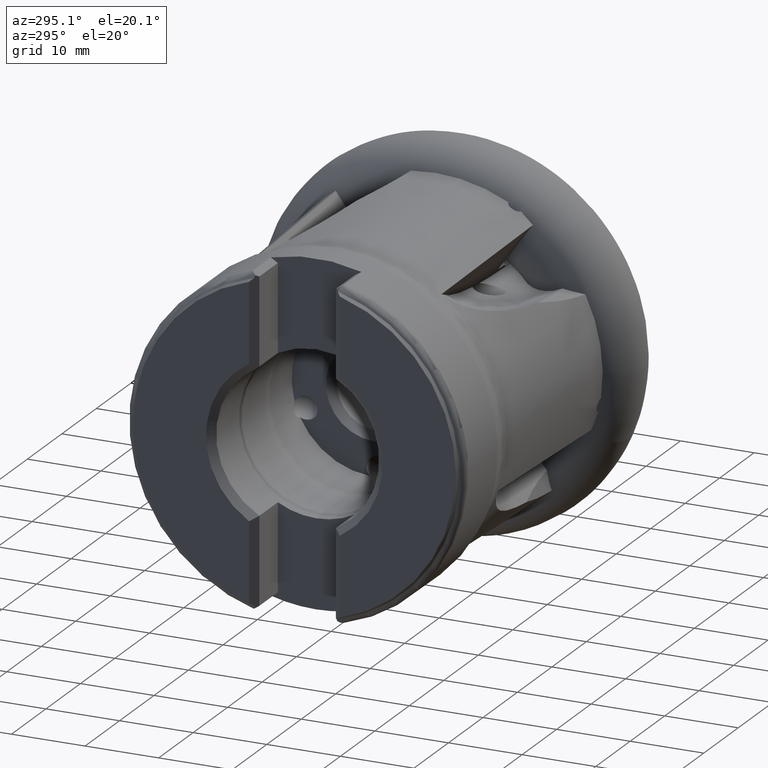
[diagram: clean part render]
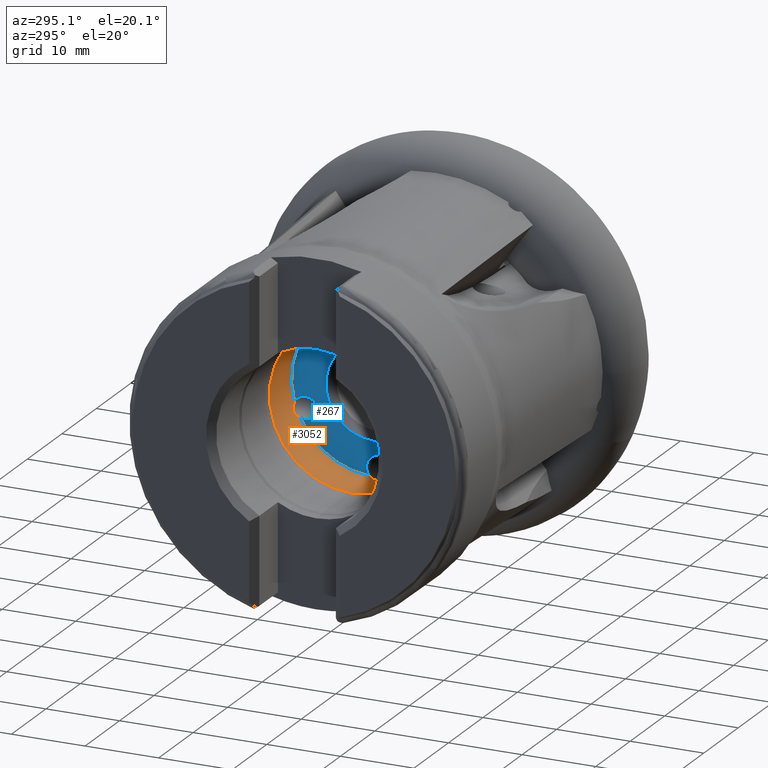
[diagram: same view with the hole feature highlighted: cylindrical wall and planar end face, labeled with their STEP entity ids]
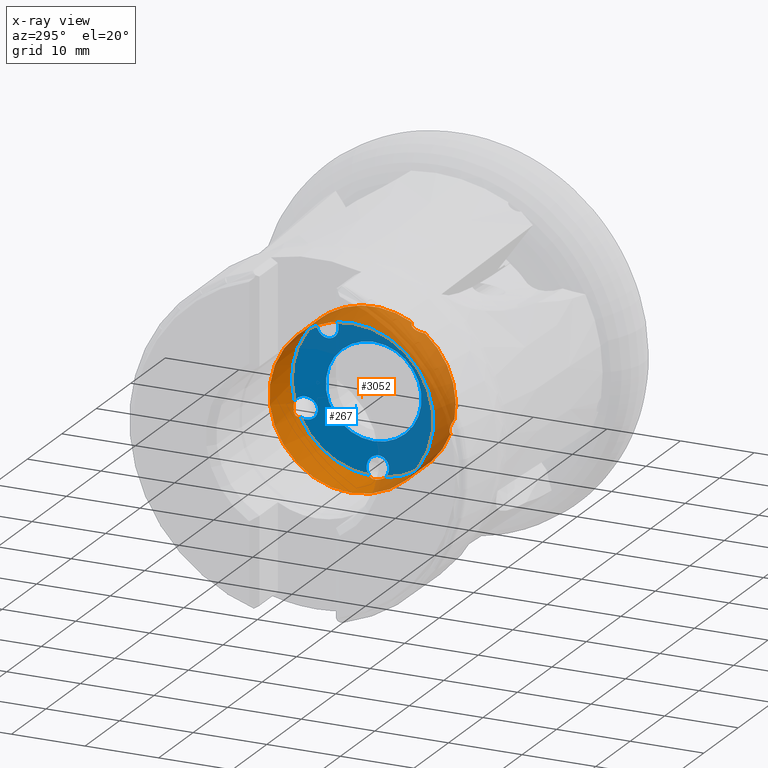
[diagram: x-ray of the same camera — body ghosted, the hole faces saturated]
A machine part, auxiliary view. The highlighted faces form one hole feature of diameter 22.3 mm: the cylindrical wall (entity #3052, orange) and its adjacent planar end face (entity #267, blue) — they share a circular edge in the B-rep.
The next image is the same camera in x-ray (body ghosted, the hole faces saturated) — the bore reads through the body.
Wall:
#8 = CARTESIAN_POINT ( 'NONE',  ( -27.76175187989196000, -5.239810333345375600, 9.842152369095432000 ) ) ;
#41 = CARTESIAN_POINT ( 'NONE',  ( -28.50151190111668600, 10.49074077464704400, -3.778720892872386100 ) ) ;
#59 = CARTESIAN_POINT ( 'NONE',  ( -28.29960827260967400, 10.59433333563337800, -3.477230530879941800 ) ) ;
#64 = CARTESIAN_POINT ( 'NONE',  ( -28.37466872460203900, -0.1309024088460021000, -11.14976025865080400 ) ) ;
#77 = CARTESIAN_POINT ( 'NONE',  ( -28.48440620764359100, -1.073869478455315800, -11.09878260729667900 ) ) ;
#81 = CARTESIAN_POINT ( 'NONE',  ( -28.57761957619680300, -0.8408868129407314200, -11.11886146998025800 ) ) ;
#141 = CARTESIAN_POINT ( 'NONE',  ( -27.64100000000014000, 10.00971959575362100, -4.912027444384439600 ) ) ;
#154 = CARTESIAN_POINT ( 'NONE',  ( -28.21370518614570600, 10.11406884447506400, -4.694131514302225300 ) ) ;
#165 = ORIENTED_EDGE ( 'NONE', *, *, #716, .T. ) ;
#193 = CARTESIAN_POINT ( 'NONE',  ( -27.84438998953940100, 6.227662339116482000, 9.249052834972788500 ) ) ;
#219 = B_SPLINE_CURVE_WITH_KNOTS ( 'NONE', 3,
 ( #3030, #4490, #2449, #488, #2796, #2884, #77, #81, #4765, #2779, #466, #64, #2758, #3398, #327, #635 ),
 .UNSPECIFIED., .F., .F.,
 ( 4, 2, 2, 2, 2, 2, 2, 4 ),
 ( 0.0000000000000000000, 0.0003733305458989563100, 0.0007466610917979126100, 0.001119991637696868700, 0.001493322183595824800, 0.001866652729494781300, 0.002239983275393737400, 0.002986644367191643100 ),
 .UNSPECIFIED. ) ;
#281 = CIRCLE ( 'NONE', #2690, 11.14999999999999700 ) ;
#313 = CARTESIAN_POINT ( 'NONE',  ( -27.64099999999993100, -10.98525055255765900, -1.909651878623837000 ) ) ;
#327 = CARTESIAN_POINT ( 'NONE',  ( -27.84981983259566700, 0.4012883259256733700, -11.14363269402992700 ) ) ;
#363 = CARTESIAN_POINT ( 'NONE',  ( -27.64099999999999100, -10.42522877188839400, -3.954377960411772800 ) ) ;
#369 = B_SPLINE_CURVE_WITH_KNOTS ( 'NONE', 3,
 ( #141, #2590, #721, #1578, #154, #1069, #2503, #1900, #1218, #2399, #2483, #3195, #41, #2083, #59, #3231, #3227, #899 ),
 .UNSPECIFIED., .F., .F.,
 ( 4, 2, 2, 2, 2, 2, 2, 2, 4 ),
 ( 0.01533476676371836900, 0.01570877489821198600, 0.01608278303270560200, 0.01626978709995240800, 0.01645679116719921100, 0.01683079930169282000, 0.01720480743618643000, 0.01757881557068003600, 0.01832683183966726100 ),
 .UNSPECIFIED. ) ;
#374 = CARTESIAN_POINT ( 'NONE',  ( -27.74424415668752500, -10.44945067765695000, -3.890519899433184700 ) ) ;
#390 = CARTESIAN_POINT ( 'NONE',  ( -27.84439165986338000, -10.47474244370597600, -3.822109793065052900 ) ) ;
#434 = CARTESIAN_POINT ( 'NONE',  ( -28.03650383006808200, -10.52789701607413700, -3.673164432904745700 ) ) ;
#448 = B_SPLINE_CURVE_WITH_KNOTS ( 'NONE', 3,
 ( #4319, #8, #4182, #4220, #4168, #4137, #4152, #3980, #3944, #3957, #3934, #3911, #3923, #3902, #3857, #3889 ),
 .UNSPECIFIED., .F., .F.,
 ( 4, 2, 2, 2, 2, 2, 2, 4 ),
 ( 0.005253013144898744900, 0.005624366798112977200, 0.005995720451327210400, 0.006367074104541442700, 0.006738427757755675900, 0.007109781410969908200, 0.007481135064184140500, 0.008223842370612599900 ),
 .UNSPECIFIED. ) ;
#462 = CARTESIAN_POINT ( 'NONE',  ( -28.12898103722292100, -10.55593071622005900, -3.592115680404644400 ) ) ;
#466 = CARTESIAN_POINT ( 'NONE',  ( -28.49967764380002000, -0.3480090985025286500, -11.14509663185519100 ) ) ;
#481 = CARTESIAN_POINT ( 'NONE',  ( -28.29674349209958700, -10.61378190402091400, -3.417396968589571300 ) ) ;
#488 = CARTESIAN_POINT ( 'NONE',  ( -28.10603189946736800, -1.402094405171310000, -11.06161683079874400 ) ) ;
#503 = CARTESIAN_POINT ( 'NONE',  ( -28.37279976103210200, -10.64368386327685900, -3.323611888745839200 ) ) ;
#516 = AXIS2_PLACEMENT_3D ( 'NONE', #2201, #2216, #2233 ) ;
#529 = CARTESIAN_POINT ( 'NONE',  ( -27.64099999999999100, 6.109862199583383300, 9.326954696046401600 ) ) ;
#536 = CARTESIAN_POINT ( 'NONE',  ( -28.49895342690748000, -10.70667955201110800, -3.114709479059036800 ) ) ;
#555 = CARTESIAN_POINT ( 'NONE',  ( -28.54713109719822500, -10.73885307242207400, -3.002495864615267500 ) ) ;
#609 = CARTESIAN_POINT ( 'NONE',  ( -28.10792409226307600, -10.95331359034935700, -2.085714191509269600 ) ) ;
#625 = VERTEX_POINT ( 'NONE', #1984 ) ;
#635 = CARTESIAN_POINT ( 'NONE',  ( -27.64099999999999100, 0.5392640663821600700, -11.13695174932121600 ) ) ;
#642 = AXIS2_PLACEMENT_3D ( 'NONE', #4502, #4507, #4519 ) ;
#689 = DIRECTION ( 'NONE',  ( 0.0000000000000000000, 0.0000000000000000000, -1.000000000000000000 ) ) ;
#716 = EDGE_CURVE ( 'NONE', #2002, #773, #281, .T. ) ;
#721 = CARTESIAN_POINT ( 'NONE',  ( -27.87817138418771300, 10.04162824195284600, -4.846745495625027500 ) ) ;
#773 = VERTEX_POINT ( 'NONE', #2174 ) ;
#790 = CIRCLE ( 'NONE', #642, 11.14999999999999700 ) ;
#899 = CARTESIAN_POINT ( 'NONE',  ( -27.64099999999999100, 10.75851229382456600, -2.928636751737163200 ) ) ;
#910 = CARTESIAN_POINT ( 'NONE',  ( -27.64099999999999100, 6.109862199583383300, 9.326954696046401600 ) ) ;
#915 = VERTEX_POINT ( 'NONE', #3529 ) ;
#944 = CARTESIAN_POINT ( 'NONE',  ( -27.76207187011228000, -10.97961870044523500, -1.942049043375919900 ) ) ;
#1069 = CARTESIAN_POINT ( 'NONE',  ( -28.35616673221830200, 10.16515963935414200, -4.581890365616802200 ) ) ;
#1114 = CARTESIAN_POINT ( 'NONE',  ( -27.64099999999993100, -10.98525055255765900, -1.909651878623837000 ) ) ;
#1183 = B_SPLINE_CURVE_WITH_KNOTS ( 'NONE', 3,
 ( #1194, #1211, #3449, #4560, #4868, #2549, #4602, #3657, #4525, #1539, #4691, #2788, #4933, #2689, #2916, #193, #5028, #529 ),
 .UNSPECIFIED., .F., .F.,
 ( 4, 2, 2, 2, 2, 2, 2, 2, 4 ),
 ( 0.006154594416985495800, 0.006525241321048131900, 0.006895888225110767000, 0.007266535129173402200, 0.007637182033236038200, 0.008007828937298674300, 0.008378475841361310300, 0.008749122745423944600, 0.009119769649486580600 ),
 .UNSPECIFIED. ) ;
#1194 = CARTESIAN_POINT ( 'NONE',  ( -27.64099999999973900, 7.764789173218301400, 8.001909090677784800 ) ) ;
#1211 = CARTESIAN_POINT ( 'NONE',  ( -27.76219559675475800, 7.741166217194797900, 8.024832029578000500 ) ) ;
#1218 = CARTESIAN_POINT ( 'NONE',  ( -28.50625553733739200, 10.24542757479512600, -4.399665409350209400 ) ) ;
#1280 = CARTESIAN_POINT ( 'NONE',  ( -27.64099999999999100, 10.75851229382456600, -2.928636751737163200 ) ) ;
#1283 = CIRCLE ( 'NONE', #516, 11.14999999999999700 ) ;
#1319 = EDGE_CURVE ( 'NONE', #1490, #4888, #1703, .T. ) ;
#1376 = CARTESIAN_POINT ( 'NONE',  ( -27.88033189125990000, -10.97255674015709600, -1.981989122378886600 ) ) ;
#1424 = AXIS2_PLACEMENT_3D ( 'NONE', #1548, #1509, #1530 ) ;
#1433 = CARTESIAN_POINT ( 'NONE',  ( -28.48557062982430600, -10.88694836224404500, -2.410472066688763800 ) ) ;
#1460 = ORIENTED_EDGE ( 'NONE', *, *, #3063, .T. ) ;
#1490 = VERTEX_POINT ( 'NONE', #1936 ) ;
#1509 = DIRECTION ( 'NONE',  ( 1.000000000000000000, -0.0000000000000000000, -0.0000000000000000000 ) ) ;
#1530 = DIRECTION ( 'NONE',  ( 0.0000000000000000000, 0.0000000000000000000, -1.000000000000000000 ) ) ;
#1539 = CARTESIAN_POINT ( 'NONE',  ( -28.54714890529600200, 6.923156875071445200, 8.741157310479806600 ) ) ;
#1548 = CARTESIAN_POINT ( 'NONE',  ( -34.09004181246353200, 0.0000000000000000000, 0.0000000000000000000 ) ) ;
#1578 = CARTESIAN_POINT ( 'NONE',  ( -28.10495880415984300, 10.08668901981584500, -4.752256755108351000 ) ) ;
#1640 = CARTESIAN_POINT ( 'NONE',  ( 0.0000000000000000000, 0.0000000000000000000, 0.0000000000000000000 ) ) ;
#1660 = EDGE_CURVE ( 'NONE', #2291, #2002, #1183, .T. ) ;
#1664 = B_SPLINE_CURVE_WITH_KNOTS ( 'NONE', 3,
 ( #313, #944, #1376, #609, #3837, #2357, #1433, #4522, #5099, #555, #536, #503, #481, #462, #434, #390, #374, #363 ),
 .UNSPECIFIED., .F., .F.,
 ( 4, 2, 2, 2, 2, 2, 2, 2, 4 ),
 ( 0.007845392675330556700, 0.008224136724038363900, 0.008602880772746169400, 0.008981624821453976600, 0.009360368870161783800, 0.009739112918869590900, 0.01011785696757739800, 0.01049660101628520400, 0.01087534506499301100 ),
 .UNSPECIFIED. ) ;
#1700 = FACE_OUTER_BOUND ( 'NONE', #3808, .T. ) ;
#1703 = CIRCLE ( 'NONE', #4991, 11.14999999999999700 ) ;
#1839 = EDGE_CURVE ( 'NONE', #2098, #4574, #790, .T. ) ;
#1900 = CARTESIAN_POINT ( 'NONE',  ( -28.47412094118071100, 10.22348394666505400, -4.450317970819905400 ) ) ;
#1936 = CARTESIAN_POINT ( 'NONE',  ( -27.64099999999999100, 0.5392640663821600700, -11.13695174932121600 ) ) ;
#1969 = ORIENTED_EDGE ( 'NONE', *, *, #1319, .T. ) ;
#1984 = CARTESIAN_POINT ( 'NONE',  ( -27.64099999999999100, -10.42522877188839400, -3.954377960411772800 ) ) ;
#2002 = VERTEX_POINT ( 'NONE', #910 ) ;
#2013 = CARTESIAN_POINT ( 'NONE',  ( -27.64099999999999100, 0.0000000000000000000, 0.0000000000000000000 ) ) ;
#2025 = CYLINDRICAL_SURFACE ( 'NONE', #4562, 11.14999999999999700 ) ;
#2083 = CARTESIAN_POINT ( 'NONE',  ( -28.37692465044574400, 10.56258692094268700, -3.572972309520862800 ) ) ;
#2098 = VERTEX_POINT ( 'NONE', #4903 ) ;
#2167 = ORIENTED_EDGE ( 'NONE', *, *, #2621, .T. ) ;
#2172 = CARTESIAN_POINT ( 'NONE',  ( -27.64099999999973900, 7.764789173218301400, 8.001909090677784800 ) ) ;
#2174 = CARTESIAN_POINT ( 'NONE',  ( -27.64099999999963900, -5.210815971227481700, 9.857479237310139200 ) ) ;
#2201 = CARTESIAN_POINT ( 'NONE',  ( -27.64099999999999100, 0.0000000000000000000, 0.0000000000000000000 ) ) ;
#2202 = CARTESIAN_POINT ( 'NONE',  ( -27.64100000000014000, 10.00971959575362100, -4.912027444384439600 ) ) ;
#2216 = DIRECTION ( 'NONE',  ( 1.000000000000000000, -0.0000000000000000000, -0.0000000000000000000 ) ) ;
#2233 = DIRECTION ( 'NONE',  ( 0.0000000000000000000, 0.0000000000000000000, -1.000000000000000000 ) ) ;
#2291 = VERTEX_POINT ( 'NONE', #2172 ) ;
#2357 = CARTESIAN_POINT ( 'NONE',  ( -28.40534731315663200, -10.90834382812467100, -2.310262262390752500 ) ) ;
#2399 = CARTESIAN_POINT ( 'NONE',  ( -28.57647870329350700, 10.31303214092542800, -4.239957037360077200 ) ) ;
#2449 = CARTESIAN_POINT ( 'NONE',  ( -27.87993420573407700, -1.505807776758753000, -11.04797622064220300 ) ) ;
#2483 = CARTESIAN_POINT ( 'NONE',  ( -28.58827441660184500, 10.36146603525657300, -4.120438118413510200 ) ) ;
#2503 = CARTESIAN_POINT ( 'NONE',  ( -28.39920735390253600, 10.18353646926969300, -4.540984367752749100 ) ) ;
#2549 = CARTESIAN_POINT ( 'NONE',  ( -28.40515234089129100, 7.467233250044054100, 8.280681338351799400 ) ) ;
#2590 = CARTESIAN_POINT ( 'NONE',  ( -27.76081483145849700, 10.02405550202009500, -4.882813763576835200 ) ) ;
#2608 = CARTESIAN_POINT ( 'NONE',  ( -27.64099999999999100, -1.578442245185529600, -11.03770900497986300 ) ) ;
#2621 = EDGE_CURVE ( 'NONE', #4574, #625, #1664, .T. ) ;
#2676 = VERTEX_POINT ( 'NONE', #1280 ) ;
#2689 = CARTESIAN_POINT ( 'NONE',  ( -28.12901826441644800, 6.428566643880295800, 9.110680252013004600 ) ) ;
#2690 = AXIS2_PLACEMENT_3D ( 'NONE', #2013, #4839, #4413 ) ;
#2702 = ORIENTED_EDGE ( 'NONE', *, *, #1839, .T. ) ;
#2758 = CARTESIAN_POINT ( 'NONE',  ( -28.29806083007545700, -0.03135636381355134900, -11.15033425612393500 ) ) ;
#2770 = DIRECTION ( 'NONE',  ( 0.0000000000000000000, 0.0000000000000000000, -1.000000000000000000 ) ) ;
#2779 = CARTESIAN_POINT ( 'NONE',  ( -28.54784347582641100, -0.4654022522181431900, -11.14097030028453600 ) ) ;
#2788 = CARTESIAN_POINT ( 'NONE',  ( -28.37281164383543700, 6.657358303248833500, 8.945054109531488600 ) ) ;
#2796 = CARTESIAN_POINT ( 'NONE',  ( -28.21549657832513700, -1.337689996288807800, -11.06977017365814200 ) ) ;
#2807 = CARTESIAN_POINT ( 'NONE',  ( -27.64099999999999100, 0.0000000000000000000, 0.0000000000000000000 ) ) ;
#2812 = DIRECTION ( 'NONE',  ( 1.000000000000000000, -0.0000000000000000000, -0.0000000000000000000 ) ) ;
#2884 = CARTESIAN_POINT ( 'NONE',  ( -28.40436084200300800, -1.174707208072743600, -11.08825005125174800 ) ) ;
#2916 = CARTESIAN_POINT ( 'NONE',  ( -28.03655953891823700, 6.358254981223423000, 9.159768018236896100 ) ) ;
#2998 = EDGE_CURVE ( 'NONE', #4888, #2676, #369, .T. ) ;
#3030 = CARTESIAN_POINT ( 'NONE',  ( -27.64099999999999100, -1.578442245185529600, -11.03770900497986300 ) ) ;
#3052 = ADVANCED_FACE ( 'NONE', ( #1700, #3323 ), #2025, .F. ) ;
#3063 = EDGE_CURVE ( 'NONE', #4009, #1490, #219, .T. ) ;
#3195 = CARTESIAN_POINT ( 'NONE',  ( -28.54889461945562700, 10.45085576941008800, -3.888136105441592600 ) ) ;
#3227 = CARTESIAN_POINT ( 'NONE',  ( -27.84923864647413400, 10.72233038354402600, -3.061553039950927000 ) ) ;
#3231 = CARTESIAN_POINT ( 'NONE',  ( -28.04802869907345600, 10.67855971889825100, -3.213251670116927800 ) ) ;
#3283 = ORIENTED_EDGE ( 'NONE', *, *, #2998, .T. ) ;
#3323 = FACE_OUTER_BOUND ( 'NONE', #4879, .T. ) ;
#3398 = CARTESIAN_POINT ( 'NONE',  ( -28.04744766350547300, 0.2442030094096111200, -11.14883912654432800 ) ) ;
#3448 = ORIENTED_EDGE ( 'NONE', *, *, #4511, .F. ) ;
#3449 = CARTESIAN_POINT ( 'NONE',  ( -27.88052136099934900, 7.711948519667706700, 8.053020137906719000 ) ) ;
#3529 = CARTESIAN_POINT ( 'NONE',  ( -34.09004181246353200, 0.0000000000000000000, -11.14999999999999700 ) ) ;
#3657 = CARTESIAN_POINT ( 'NONE',  ( -28.57767084675306500, 7.215097955701497600, 8.501671200604121700 ) ) ;
#3683 = EDGE_CURVE ( 'NONE', #625, #4009, #1283, .T. ) ;
#3698 = ORIENTED_EDGE ( 'NONE', *, *, #1660, .T. ) ;
#3808 = EDGE_LOOP ( 'NONE', ( #3448 ) ) ;
#3837 = CARTESIAN_POINT ( 'NONE',  ( -28.21619357089211600, -10.94126648811469800, -2.148944957338536600 ) ) ;
#3857 = CARTESIAN_POINT ( 'NONE',  ( -27.84748640889747800, -6.875915481142405900, 8.778550231256632600 ) ) ;
#3889 = CARTESIAN_POINT ( 'NONE',  ( -27.64099999999999100, -6.982409787904478200, 8.693011765422596700 ) ) ;
#3902 = CARTESIAN_POINT ( 'NONE',  ( -28.04557583490066400, -6.752046500370956200, 8.875031156286320700 ) ) ;
#3911 = CARTESIAN_POINT ( 'NONE',  ( -28.37342721544328600, -6.449254464011104900, 9.096233633199954500 ) ) ;
#3923 = CARTESIAN_POINT ( 'NONE',  ( -28.29689501489837900, -6.529815098445007000, 9.038388532928626900 ) ) ;
#3934 = CARTESIAN_POINT ( 'NONE',  ( -28.49913170177226000, -6.270432760104976700, 9.220413355827798100 ) ) ;
#3944 = CARTESIAN_POINT ( 'NONE',  ( -28.58819576354195400, -5.965138669479076200, 9.420987349235693000 ) ) ;
#3957 = CARTESIAN_POINT ( 'NONE',  ( -28.54740435054954500, -6.173220617934076100, 9.285969479967466400 ) ) ;
#3978 = AXIS2_PLACEMENT_3D ( 'NONE', #4514, #4442, #4462 ) ;
#3980 = CARTESIAN_POINT ( 'NONE',  ( -28.57765116610818300, -5.855696916664294700, 9.489304956249426900 ) ) ;
#4009 = VERTEX_POINT ( 'NONE', #2608 ) ;
#4067 = ORIENTED_EDGE ( 'NONE', *, *, #4265, .T. ) ;
#4137 = CARTESIAN_POINT ( 'NONE',  ( -28.40496136457068800, -5.567671163058697000, 9.660761449811227300 ) ) ;
#4152 = CARTESIAN_POINT ( 'NONE',  ( -28.48508961667790400, -5.655975772158500400, 9.609684333904406000 ) ) ;
#4168 = CARTESIAN_POINT ( 'NONE',  ( -28.21560424451005000, -5.424449708233595400, 9.741900191079693600 ) ) ;
#4182 = CARTESIAN_POINT ( 'NONE',  ( -27.87958510888061500, -5.275482721037604100, 9.823162723703916300 ) ) ;
#4196 = CIRCLE ( 'NONE', #3978, 11.14999999999999700 ) ;
#4220 = CARTESIAN_POINT ( 'NONE',  ( -28.10607761810711800, -5.367544397417262300, 9.773162792979917400 ) ) ;
#4265 = EDGE_CURVE ( 'NONE', #2676, #2291, #4196, .T. ) ;
#4319 = CARTESIAN_POINT ( 'NONE',  ( -27.64099999999963900, -5.210815971227481700, 9.857479237310139200 ) ) ;
#4378 = CIRCLE ( 'NONE', #1424, 11.14999999999999700 ) ;
#4413 = DIRECTION ( 'NONE',  ( 0.0000000000000000000, 0.0000000000000000000, -1.000000000000000000 ) ) ;
#4442 = DIRECTION ( 'NONE',  ( 1.000000000000000000, -0.0000000000000000000, -0.0000000000000000000 ) ) ;
#4462 = DIRECTION ( 'NONE',  ( 0.0000000000000000000, 0.0000000000000000000, -1.000000000000000000 ) ) ;
#4490 = CARTESIAN_POINT ( 'NONE',  ( -27.76203069658145100, -1.545901442607906300, -11.04236248673568700 ) ) ;
#4502 = CARTESIAN_POINT ( 'NONE',  ( -27.64099999999999100, 0.0000000000000000000, 0.0000000000000000000 ) ) ;
#4507 = DIRECTION ( 'NONE',  ( 1.000000000000000000, -0.0000000000000000000, -0.0000000000000000000 ) ) ;
#4511 = EDGE_CURVE ( 'NONE', #915, #915, #4378, .T. ) ;
#4514 = CARTESIAN_POINT ( 'NONE',  ( -27.64099999999999100, 0.0000000000000000000, 0.0000000000000000000 ) ) ;
#4519 = DIRECTION ( 'NONE',  ( 0.0000000000000000000, 0.0000000000000000000, -1.000000000000000000 ) ) ;
#4522 = CARTESIAN_POINT ( 'NONE',  ( -28.57762706134264600, -10.83431147988356400, -2.636989757909249800 ) ) ;
#4525 = CARTESIAN_POINT ( 'NONE',  ( -28.58822508867704200, 7.116191574918866000, 8.584739350292313300 ) ) ;
#4560 = CARTESIAN_POINT ( 'NONE',  ( -28.10808915598737600, 7.635397933205869200, 8.125637311197907700 ) ) ;
#4562 = AXIS2_PLACEMENT_3D ( 'NONE', #1640, #5024, #689 ) ;
#4574 = VERTEX_POINT ( 'NONE', #1114 ) ;
#4602 = CARTESIAN_POINT ( 'NONE',  ( -28.48548344795570500, 7.391029603063214100, 8.349175595242483500 ) ) ;
#4691 = CARTESIAN_POINT ( 'NONE',  ( -28.49900682331781400, 6.831188101572228900, 8.813017742023467000 ) ) ;
#4717 = EDGE_CURVE ( 'NONE', #773, #2098, #448, .T. ) ;
#4765 = CARTESIAN_POINT ( 'NONE',  ( -28.58815984721785200, -0.7125924013252358200, -11.12789425532815300 ) ) ;
#4839 = DIRECTION ( 'NONE',  ( 1.000000000000000000, -0.0000000000000000000, -0.0000000000000000000 ) ) ;
#4868 = CARTESIAN_POINT ( 'NONE',  ( -28.21625910183126600, 7.588499682119279800, 8.169695735605264600 ) ) ;
#4879 = EDGE_LOOP ( 'NONE', ( #1969, #3283, #4067, #3698, #165, #4984, #2702, #2167, #4911, #1460 ) ) ;
#4888 = VERTEX_POINT ( 'NONE', #2202 ) ;
#4903 = CARTESIAN_POINT ( 'NONE',  ( -27.64099999999999100, -6.982409787904478200, 8.693011765422596700 ) ) ;
#4911 = ORIENTED_EDGE ( 'NONE', *, *, #3683, .T. ) ;
#4933 = CARTESIAN_POINT ( 'NONE',  ( -28.29673221090357400, 6.578025592777462900, 9.003362874503883600 ) ) ;
#4984 = ORIENTED_EDGE ( 'NONE', *, *, #4717, .T. ) ;
#4991 = AXIS2_PLACEMENT_3D ( 'NONE', #2807, #2812, #2770 ) ;
#5024 = DIRECTION ( 'NONE',  ( 1.000000000000000000, -0.0000000000000000000, -0.0000000000000000000 ) ) ;
#5028 = CARTESIAN_POINT ( 'NONE',  ( -27.74423380454798900, 6.166987231052964100, 9.289533471027054300 ) ) ;
#5099 = CARTESIAN_POINT ( 'NONE',  ( -28.58823456858207400, -10.80311193247312000, -2.762375662823159500 ) ) ;
End face:
#34 = CARTESIAN_POINT ( 'NONE',  ( -27.64099999999999800, -7.218869592838477600, 7.096385872659078900 ) ) ;
#79 = CARTESIAN_POINT ( 'NONE',  ( -27.64099999999999100, -10.15733035715895300, -0.3733673617800122900 ) ) ;
#126 = PLANE ( 'NONE',  #4538 ) ;
#267 = ADVANCED_FACE ( 'NONE', ( #4918, #1146 ), #126, .F. ) ;
#281 = CIRCLE ( 'NONE', #2690, 11.14999999999999700 ) ;
#422 = ORIENTED_EDGE ( 'NONE', *, *, #567, .T. ) ;
#516 = AXIS2_PLACEMENT_3D ( 'NONE', #2201, #2216, #2233 ) ;
#567 = EDGE_CURVE ( 'NONE', #2098, #773, #2675, .T. ) ;
#625 = VERTEX_POINT ( 'NONE', #1984 ) ;
#642 = AXIS2_PLACEMENT_3D ( 'NONE', #4502, #4507, #4519 ) ;
#662 = DIRECTION ( 'NONE',  ( -0.0000000000000000000, 0.0000000000000000000, -1.000000000000000000 ) ) ;
#716 = EDGE_CURVE ( 'NONE', #2002, #773, #281, .T. ) ;
#773 = VERTEX_POINT ( 'NONE', #2174 ) ;
#790 = CIRCLE ( 'NONE', #642, 11.14999999999999700 ) ;
#810 = EDGE_CURVE ( 'NONE', #1155, #1155, #2962, .T. ) ;
#884 = EDGE_CURVE ( 'NONE', #625, #4574, #1906, .T. ) ;
#889 = CARTESIAN_POINT ( 'NONE',  ( -27.64099999999999500, -7.619859120737658000, -3.540675772946010100 ) ) ;
#910 = CARTESIAN_POINT ( 'NONE',  ( -27.64099999999999100, 6.109862199583383300, 9.326954696046401600 ) ) ;
#950 = CARTESIAN_POINT ( 'NONE',  ( -27.64099999999999100, -8.476942378529660300, -0.4113323224531155700 ) ) ;
#1000 = CARTESIAN_POINT ( 'NONE',  ( -27.64099999999999100, -10.42522877188839400, -3.954377960411772800 ) ) ;
#1114 = CARTESIAN_POINT ( 'NONE',  ( -27.64099999999993100, -10.98525055255765900, -1.909651878623837000 ) ) ;
#1146 = FACE_BOUND ( 'NONE', #3647, .T. ) ;
#1155 = VERTEX_POINT ( 'NONE', #5060 ) ;
#1201 = CARTESIAN_POINT ( 'NONE',  ( -27.64099999999999100, 10.75851229382456600, -2.928636751737163200 ) ) ;
#1238 = ORIENTED_EDGE ( 'NONE', *, *, #4166, .T. ) ;
#1245 = ORIENTED_EDGE ( 'NONE', *, *, #4518, .T. ) ;
#1280 = CARTESIAN_POINT ( 'NONE',  ( -27.64099999999999100, 10.75851229382456600, -2.928636751737163200 ) ) ;
#1283 = CIRCLE ( 'NONE', #516, 11.14999999999999700 ) ;
#1317 = CARTESIAN_POINT ( 'NONE',  ( -27.64099999999999100, -2.783694235450329100, -9.775572084274312300 ) ) ;
#1319 = EDGE_CURVE ( 'NONE', #1490, #4888, #1703, .T. ) ;
#1332 = CARTESIAN_POINT ( 'NONE',  ( -27.64099999999999100, -1.578442245185529600, -11.03770900497986300 ) ) ;
#1346 = CARTESIAN_POINT ( 'NONE',  ( -27.64099999999999100, -2.228318969671605000, -8.189159965332780900 ) ) ;
#1361 = CARTESIAN_POINT ( 'NONE',  ( -27.64099999999999100, 1.012716802898609100, -8.341045655440696600 ) ) ;
#1362 = ORIENTED_EDGE ( 'NONE', *, *, #810, .T. ) ;
#1377 = CARTESIAN_POINT ( 'NONE',  ( -27.64099999999999100, -0.6078010833864979600, -8.265102810386737900 ) ) ;
#1490 = VERTEX_POINT ( 'NONE', #1936 ) ;
#1560 = CARTESIAN_POINT ( 'NONE',  ( -27.64100000000014000, 10.00971959575362100, -4.912027444384439600 ) ) ;
#1565 = CARTESIAN_POINT ( 'NONE',  ( -27.64099999999999100, 0.5392640663821600700, -11.13695174932121600 ) ) ;
#1608 = CARTESIAN_POINT ( 'NONE',  ( -27.64099999999999100, 1.669037220258108100, -9.984241854518524300 ) ) ;
#1703 = CIRCLE ( 'NONE', #4991, 11.14999999999999700 ) ;
#1765 =( BOUNDED_CURVE ( )  B_SPLINE_CURVE ( 3, ( #1565, #1608, #1361, #1377, #1346, #1317, #1332 ),
 .UNSPECIFIED., .F., .F. ) 
 B_SPLINE_CURVE_WITH_KNOTS ( ( 4, 3, 4 ),
 ( 0.3508712594316106800, 2.726127870907266300, 5.101384482382922400 ),
 .UNSPECIFIED. ) 
 CURVE ( )  GEOMETRIC_REPRESENTATION_ITEM ( )  RATIONAL_B_SPLINE_CURVE ( ( 1.000000000000000000, 0.5825737548457278200, 0.5825737548457278200, 1.000000000000000000, 0.5825737548457277100, 0.5825737548457277100, 1.000000000000000000 ) ) 
 REPRESENTATION_ITEM ( '' )  );
#1839 = EDGE_CURVE ( 'NONE', #2098, #4574, #790, .T. ) ;
#1906 =( BOUNDED_CURVE ( )  B_SPLINE_CURVE ( 3, ( #1000, #4477, #889, #2125, #950, #79, #2315 ),
 .UNSPECIFIED., .F., .T. ) 
 B_SPLINE_CURVE_WITH_KNOTS ( ( 4, 3, 4 ),
 ( 0.3508712594322554400, 2.726127870907317800, 5.101384482382380600 ),
 .UNSPECIFIED. ) 
 CURVE ( )  GEOMETRIC_REPRESENTATION_ITEM ( )  RATIONAL_B_SPLINE_CURVE ( ( 1.000000000000000000, 0.5825737548459112300, 0.5825737548459112300, 1.000000000000000000, 0.5825737548459111200, 0.5825737548459111200, 1.000000000000000000 ) ) 
 REPRESENTATION_ITEM ( '' )  );
#1936 = CARTESIAN_POINT ( 'NONE',  ( -27.64099999999999100, 0.5392640663821600700, -11.13695174932121600 ) ) ;
#1944 = CARTESIAN_POINT ( 'NONE',  ( -27.64099999999999800, 10.01133914131037600, -1.497951684730595800 ) ) ;
#1984 = CARTESIAN_POINT ( 'NONE',  ( -27.64099999999999100, -10.42522877188839400, -3.954377960411772800 ) ) ;
#2002 = VERTEX_POINT ( 'NONE', #910 ) ;
#2013 = CARTESIAN_POINT ( 'NONE',  ( -27.64099999999999100, 0.0000000000000000000, 0.0000000000000000000 ) ) ;
#2084 = CARTESIAN_POINT ( 'NONE',  ( -27.64099999999999100, 5.349826946285908500, 6.329352120716773600 ) ) ;
#2098 = VERTEX_POINT ( 'NONE', #4903 ) ;
#2125 = CARTESIAN_POINT ( 'NONE',  ( -27.64099999999999100, -8.048400749633659100, -1.976004047699562600 ) ) ;
#2172 = CARTESIAN_POINT ( 'NONE',  ( -27.64099999999973900, 7.764789173218301400, 8.001909090677784800 ) ) ;
#2174 = CARTESIAN_POINT ( 'NONE',  ( -27.64099999999963900, -5.210815971227481700, 9.857479237310139200 ) ) ;
#2199 = CARTESIAN_POINT ( 'NONE',  ( -27.64099999999998800, 6.616215371638761900, 5.315396553833288400 ) ) ;
#2201 = CARTESIAN_POINT ( 'NONE',  ( -27.64099999999999100, 0.0000000000000000000, 0.0000000000000000000 ) ) ;
#2202 = CARTESIAN_POINT ( 'NONE',  ( -27.64100000000014000, 10.00971959575362100, -4.912027444384439600 ) ) ;
#2216 = DIRECTION ( 'NONE',  ( 1.000000000000000000, -0.0000000000000000000, -0.0000000000000000000 ) ) ;
#2233 = DIRECTION ( 'NONE',  ( 0.0000000000000000000, 0.0000000000000000000, -1.000000000000000000 ) ) ;
#2259 = CARTESIAN_POINT ( 'NONE',  ( -27.64099999999999100, -4.366384134966814700, 7.043865147001242600 ) ) ;
#2291 = VERTEX_POINT ( 'NONE', #2172 ) ;
#2315 = CARTESIAN_POINT ( 'NONE',  ( -27.64099999999993100, -10.98525055255765900, -1.909651878623837000 ) ) ;
#2354 = ORIENTED_EDGE ( 'NONE', *, *, #716, .F. ) ;
#2406 = CARTESIAN_POINT ( 'NONE',  ( -27.64099999999998800, 7.997993047480480100, 6.272389527425797700 ) ) ;
#2496 = ORIENTED_EDGE ( 'NONE', *, *, #4265, .F. ) ;
#2608 = CARTESIAN_POINT ( 'NONE',  ( -27.64099999999999100, -1.578442245185529600, -11.03770900497986300 ) ) ;
#2627 =( BOUNDED_CURVE ( )  B_SPLINE_CURVE ( 3, ( #4267, #4421, #2923, #2084, #2199, #2406, #2855 ),
 .UNSPECIFIED., .F., .F. ) 
 B_SPLINE_CURVE_WITH_KNOTS ( ( 4, 3, 4 ),
 ( 0.3508712594326304200, 2.726127870907495400, 5.101384482382360200 ),
 .UNSPECIFIED. ) 
 CURVE ( )  GEOMETRIC_REPRESENTATION_ITEM ( )  RATIONAL_B_SPLINE_CURVE ( ( 1.000000000000000000, 0.5825737548459722900, 0.5825737548459722900, 1.000000000000000000, 0.5825737548459722900, 0.5825737548459722900, 1.000000000000000000 ) ) 
 REPRESENTATION_ITEM ( '' )  );
#2675 =( BOUNDED_CURVE ( )  B_SPLINE_CURVE ( 3, ( #3585, #34, #3025, #2259, #3846, #4724, #4688 ),
 .UNSPECIFIED., .F., .T. ) 
 B_SPLINE_CURVE_WITH_KNOTS ( ( 4, 3, 4 ),
 ( 0.3508712594327586000, 2.726127870907550500, 5.101384482382342400 ),
 .UNSPECIFIED. ) 
 CURVE ( )  GEOMETRIC_REPRESENTATION_ITEM ( )  RATIONAL_B_SPLINE_CURVE ( ( 1.000000000000000000, 0.5825737548459948300, 0.5825737548459948300, 1.000000000000000000, 0.5825737548459948300, 0.5825737548459948300, 1.000000000000000000 ) ) 
 REPRESENTATION_ITEM ( '' )  );
#2676 = VERTEX_POINT ( 'NONE', #1280 ) ;
#2690 = AXIS2_PLACEMENT_3D ( 'NONE', #2013, #4839, #4413 ) ;
#2770 = DIRECTION ( 'NONE',  ( 0.0000000000000000000, 0.0000000000000000000, -1.000000000000000000 ) ) ;
#2807 = CARTESIAN_POINT ( 'NONE',  ( -27.64099999999999100, 0.0000000000000000000, 0.0000000000000000000 ) ) ;
#2812 = DIRECTION ( 'NONE',  ( 1.000000000000000000, -0.0000000000000000000, -0.0000000000000000000 ) ) ;
#2855 = CARTESIAN_POINT ( 'NONE',  ( -27.64099999999973900, 7.764789173218301400, 8.001909090677784800 ) ) ;
#2923 = CARTESIAN_POINT ( 'NONE',  ( -27.64099999999998800, 4.083438520933055000, 7.343307687600257900 ) ) ;
#2962 = CIRCLE ( 'NONE', #4860, 6.500000000000000900 ) ;
#3025 = CARTESIAN_POINT ( 'NONE',  ( -27.64099999999999800, -5.722048728998727200, 6.152787684616701100 ) ) ;
#3211 = ORIENTED_EDGE ( 'NONE', *, *, #884, .T. ) ;
#3257 = ORIENTED_EDGE ( 'NONE', *, *, #5051, .T. ) ;
#3337 = DIRECTION ( 'NONE',  ( 1.000000000000000000, -0.0000000000000000000, -0.0000000000000000000 ) ) ;
#3390 = ORIENTED_EDGE ( 'NONE', *, *, #1319, .F. ) ;
#3547 = DIRECTION ( 'NONE',  ( 0.0000000000000000000, 0.0000000000000000000, -1.000000000000000000 ) ) ;
#3585 = CARTESIAN_POINT ( 'NONE',  ( -27.64099999999999100, -6.982409787904478200, 8.693011765422596700 ) ) ;
#3647 = EDGE_LOOP ( 'NONE', ( #1362 ) ) ;
#3683 = EDGE_CURVE ( 'NONE', #625, #4009, #1283, .T. ) ;
#3846 = CARTESIAN_POINT ( 'NONE',  ( -27.64099999999999800, -3.010719540934902100, 7.934942609385783100 ) ) ;
#3878 = ORIENTED_EDGE ( 'NONE', *, *, #3683, .F. ) ;
#3880 = DIRECTION ( 'NONE',  ( 1.000000000000000000, 0.0000000000000000000, -0.0000000000000000000 ) ) ;
#3978 = AXIS2_PLACEMENT_3D ( 'NONE', #4514, #4442, #4462 ) ;
#4009 = VERTEX_POINT ( 'NONE', #2608 ) ;
#4166 = EDGE_CURVE ( 'NONE', #2676, #4888, #4771, .T. ) ;
#4196 = CIRCLE ( 'NONE', #3978, 11.14999999999999700 ) ;
#4265 = EDGE_CURVE ( 'NONE', #2676, #2291, #4196, .T. ) ;
#4267 = CARTESIAN_POINT ( 'NONE',  ( -27.64099999999999100, 6.109862199583383300, 9.326954696046401600 ) ) ;
#4413 = DIRECTION ( 'NONE',  ( 0.0000000000000000000, 0.0000000000000000000, -1.000000000000000000 ) ) ;
#4421 = CARTESIAN_POINT ( 'NONE',  ( -27.64099999999998800, 4.518310641973756400, 9.058456799848148200 ) ) ;
#4442 = DIRECTION ( 'NONE',  ( 1.000000000000000000, -0.0000000000000000000, -0.0000000000000000000 ) ) ;
#4462 = DIRECTION ( 'NONE',  ( 0.0000000000000000000, 0.0000000000000000000, -1.000000000000000000 ) ) ;
#4477 = CARTESIAN_POINT ( 'NONE',  ( -27.64099999999999500, -8.979817410701770100, -4.672649133260615700 ) ) ;
#4481 = CARTESIAN_POINT ( 'NONE',  ( -27.64099999999999800, 7.099765517496488000, -4.649846875432469800 ) ) ;
#4502 = CARTESIAN_POINT ( 'NONE',  ( -27.64099999999999100, 0.0000000000000000000, 0.0000000000000000000 ) ) ;
#4507 = DIRECTION ( 'NONE',  ( 1.000000000000000000, -0.0000000000000000000, -0.0000000000000000000 ) ) ;
#4514 = CARTESIAN_POINT ( 'NONE',  ( -27.64099999999999100, 0.0000000000000000000, 0.0000000000000000000 ) ) ;
#4518 = EDGE_CURVE ( 'NONE', #1490, #4009, #1765, .T. ) ;
#4519 = DIRECTION ( 'NONE',  ( 0.0000000000000000000, 0.0000000000000000000, -1.000000000000000000 ) ) ;
#4538 = AXIS2_PLACEMENT_3D ( 'NONE', #4677, #3880, #662 ) ;
#4574 = VERTEX_POINT ( 'NONE', #1114 ) ;
#4594 = CARTESIAN_POINT ( 'NONE',  ( -27.64099999999999100, 7.672759021701805800, -3.132110409631515300 ) ) ;
#4677 = CARTESIAN_POINT ( 'NONE',  ( -27.64099999999999100, 6.500000000000000900, 0.0000000000000000000 ) ) ;
#4688 = CARTESIAN_POINT ( 'NONE',  ( -27.64099999999963900, -5.210815971227481700, 9.857479237310139200 ) ) ;
#4724 = CARTESIAN_POINT ( 'NONE',  ( -27.64099999999999800, -3.493881160235736200, 9.544818364403630200 ) ) ;
#4728 = CARTESIAN_POINT ( 'NONE',  ( -27.64099999999999800, 8.245752525907121800, -1.614373943830560700 ) ) ;
#4749 = CARTESIAN_POINT ( 'NONE',  ( -27.64099999999999800, 8.436912705363552000, -5.668268445775915200 ) ) ;
#4771 =( BOUNDED_CURVE ( )  B_SPLINE_CURVE ( 3, ( #1201, #1944, #4728, #4594, #4481, #4749, #1560 ),
 .UNSPECIFIED., .F., .F. ) 
 B_SPLINE_CURVE_WITH_KNOTS ( ( 4, 3, 4 ),
 ( 0.3508712594318461600, 2.726127870907128600, 5.101384482382410800 ),
 .UNSPECIFIED. ) 
 CURVE ( )  GEOMETRIC_REPRESENTATION_ITEM ( )  RATIONAL_B_SPLINE_CURVE ( ( 1.000000000000000000, 0.5825737548458432800, 0.5825737548458432800, 1.000000000000000000, 0.5825737548458432800, 0.5825737548458432800, 1.000000000000000000 ) ) 
 REPRESENTATION_ITEM ( '' )  );
#4839 = DIRECTION ( 'NONE',  ( 1.000000000000000000, -0.0000000000000000000, -0.0000000000000000000 ) ) ;
#4860 = AXIS2_PLACEMENT_3D ( 'NONE', #5091, #3337, #3547 ) ;
#4888 = VERTEX_POINT ( 'NONE', #2202 ) ;
#4903 = CARTESIAN_POINT ( 'NONE',  ( -27.64099999999999100, -6.982409787904478200, 8.693011765422596700 ) ) ;
#4915 = ORIENTED_EDGE ( 'NONE', *, *, #1839, .F. ) ;
#4918 = FACE_OUTER_BOUND ( 'NONE', #4972, .T. ) ;
#4972 = EDGE_LOOP ( 'NONE', ( #2496, #1238, #3390, #1245, #3878, #3211, #4915, #422, #2354, #3257 ) ) ;
#4991 = AXIS2_PLACEMENT_3D ( 'NONE', #2807, #2812, #2770 ) ;
#5051 = EDGE_CURVE ( 'NONE', #2002, #2291, #2627, .T. ) ;
#5060 = CARTESIAN_POINT ( 'NONE',  ( -27.64099999999999100, 0.0000000000000000000, -6.500000000000000900 ) ) ;
#5091 = CARTESIAN_POINT ( 'NONE',  ( -27.64099999999999100, 0.0000000000000000000, 0.0000000000000000000 ) ) ;